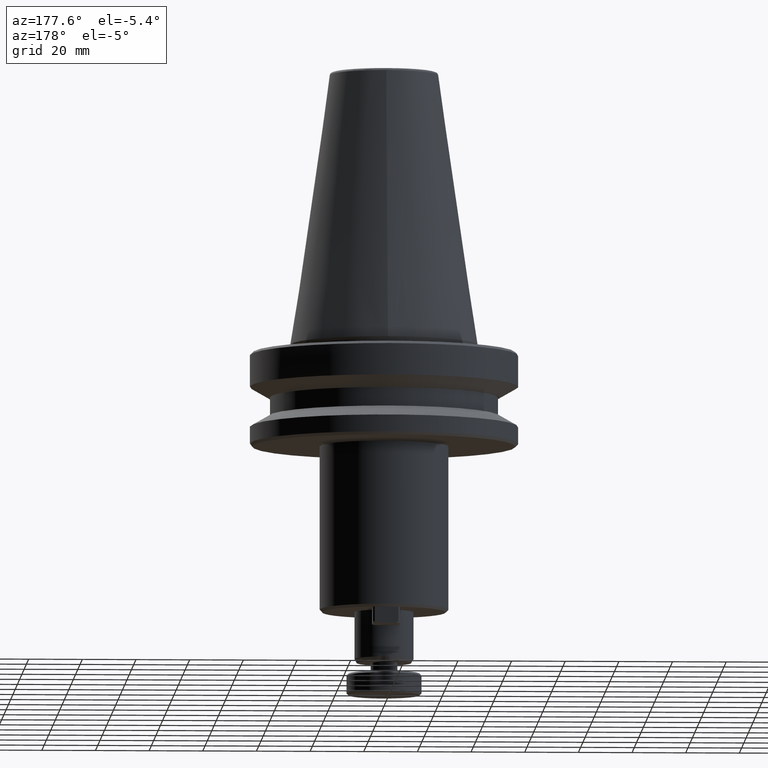
[diagram: clean part render]
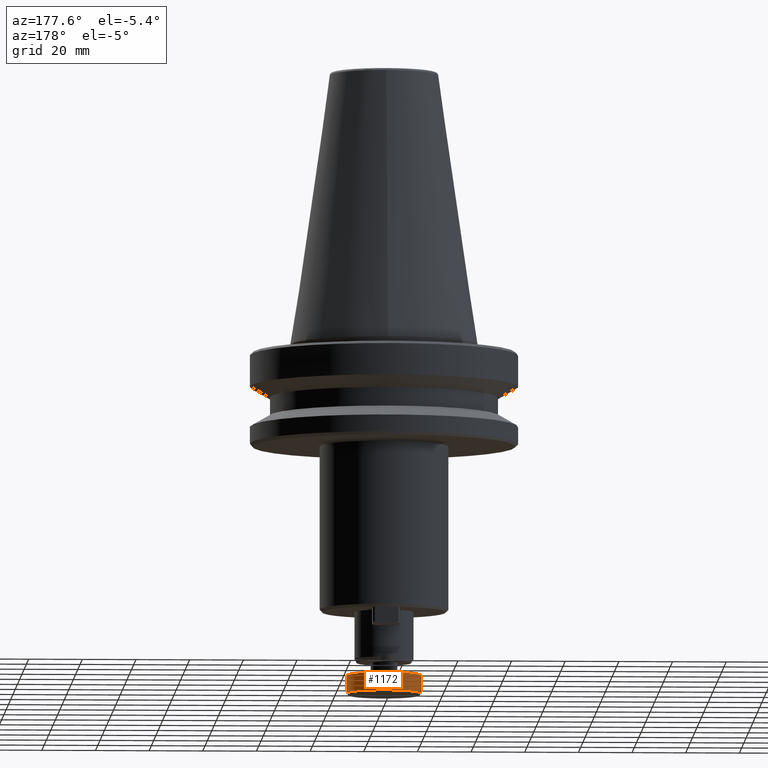
[diagram: same view with one face highlighted and labeled with its STEP entity id]
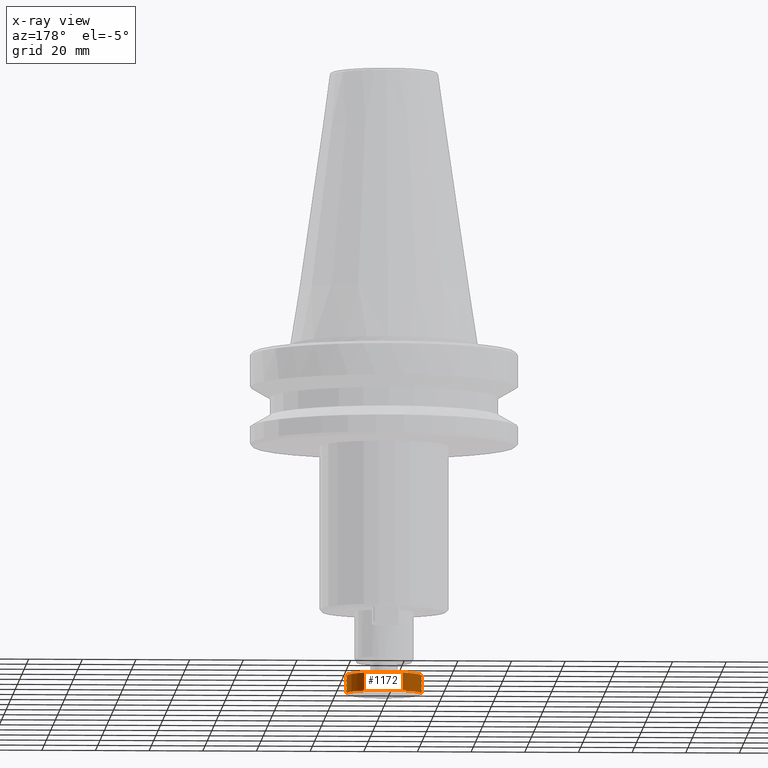
[diagram: x-ray of the same camera — body ghosted, the highlighted face saturated]
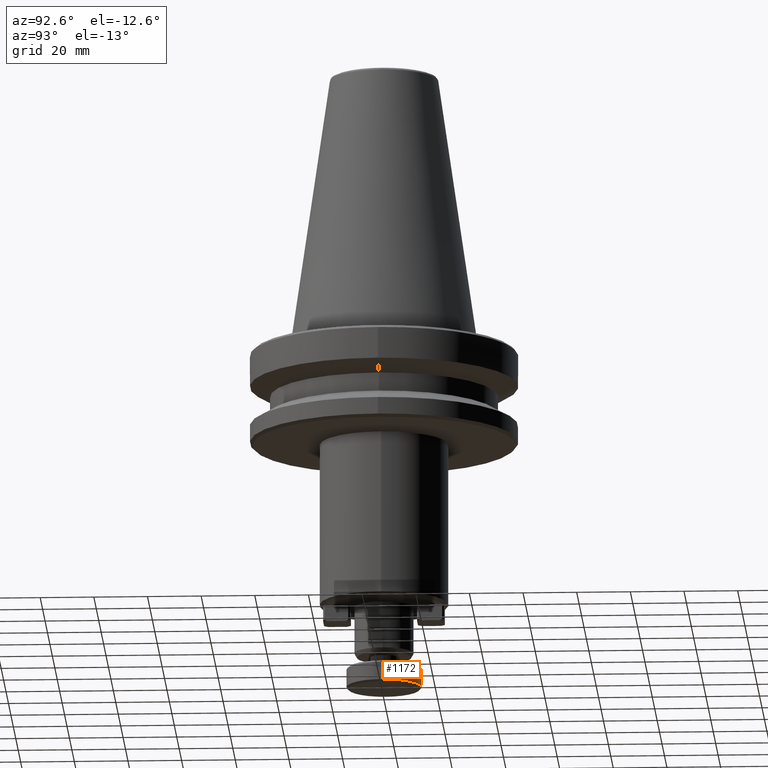
[diagram: same view with one face highlighted and labeled with its STEP entity id]
A machine part, auxiliary view. The second image highlights one B-rep face of the part: STEP entity #1172.
The next image is the same camera in x-ray: the body ghosted, the highlighted face saturated — about 0% of this face is hidden behind the body in this view.
A second angle (auxiliary view) of the same face is appended — the face is thin or edge-on in the first view.
In plain terms, the highlighted cylindrical surface (partial cylindrical patch) has radius 14 mm, axis along (0, 0, 1).
Its self-contained STEP definition (entity closure, byte-faithful):
#67 = ORIENTED_EDGE ( 'NONE', *, *, #294, .F. ) ;
#71 = VECTOR ( 'NONE', #1479, 1000.000000000000000 ) ;
#155 = ORIENTED_EDGE ( 'NONE', *, *, #895, .T. ) ;
#161 = AXIS2_PLACEMENT_3D ( 'NONE', #2244, #2251, #1824 ) ;
#227 = VECTOR ( 'NONE', #1660, 1000.000000000000000 ) ;
#258 = ORIENTED_EDGE ( 'NONE', *, *, #785, .T. ) ;
#294 = EDGE_CURVE ( 'NONE', #1894, #1405, #1637, .T. ) ;
#695 = LINE ( 'NONE', #1481, #71 ) ;
#785 = EDGE_CURVE ( 'NONE', #1029, #1769, #2062, .T. ) ;
#895 = EDGE_CURVE ( 'NONE', #1769, #1405, #1427, .T. ) ;
#953 = EDGE_CURVE ( 'NONE', #1029, #1894, #695, .T. ) ;
#954 = CARTESIAN_POINT ( 'NONE',  ( -14.00000000000000200, 1.714505518806294800E-015, -123.7000000000000300 ) ) ;
#1029 = VERTEX_POINT ( 'NONE', #1399 ) ;
#1172 = ADVANCED_FACE ( 'NONE', ( #2413 ), #1461, .T. ) ;
#1258 = DIRECTION ( 'NONE',  ( 0.0000000000000000000, 0.0000000000000000000, 1.000000000000000000 ) ) ;
#1260 = CARTESIAN_POINT ( 'NONE',  ( 0.0000000000000000000, 0.0000000000000000000, 0.0000000000000000000 ) ) ;
#1264 = DIRECTION ( 'NONE',  ( 1.000000000000000000, 0.0000000000000000000, 0.0000000000000000000 ) ) ;
#1378 = AXIS2_PLACEMENT_3D ( 'NONE', #1260, #1258, #1264 ) ;
#1399 = CARTESIAN_POINT ( 'NONE',  ( 13.99999999999997200, 0.0000000000000000000, -130.3000000000000700 ) ) ;
#1405 = VERTEX_POINT ( 'NONE', #954 ) ;
#1427 = LINE ( 'NONE', #1555, #227 ) ;
#1461 = CYLINDRICAL_SURFACE ( 'NONE', #1378, 13.99999999999999800 ) ;
#1479 = DIRECTION ( 'NONE',  ( 0.0000000000000000000, 0.0000000000000000000, 1.000000000000000000 ) ) ;
#1481 = CARTESIAN_POINT ( 'NONE',  ( 13.99999999999999800, 0.0000000000000000000, 0.0000000000000000000 ) ) ;
#1533 = ORIENTED_EDGE ( 'NONE', *, *, #953, .F. ) ;
#1555 = CARTESIAN_POINT ( 'NONE',  ( -13.99999999999999800, 1.714505518806294400E-015, 0.0000000000000000000 ) ) ;
#1637 = CIRCLE ( 'NONE', #161, 14.00000000000000200 ) ;
#1639 = AXIS2_PLACEMENT_3D ( 'NONE', #2293, #2284, #1834 ) ;
#1660 = DIRECTION ( 'NONE',  ( 0.0000000000000000000, 0.0000000000000000000, 1.000000000000000000 ) ) ;
#1769 = VERTEX_POINT ( 'NONE', #2492 ) ;
#1824 = DIRECTION ( 'NONE',  ( -1.000000000000000000, 0.0000000000000000000, 0.0000000000000000000 ) ) ;
#1834 = DIRECTION ( 'NONE',  ( 1.000000000000000000, 0.0000000000000000000, 0.0000000000000000000 ) ) ;
#1894 = VERTEX_POINT ( 'NONE', #2247 ) ;
#2062 = CIRCLE ( 'NONE', #1639, 13.99999999999999800 ) ;
#2192 = EDGE_LOOP ( 'NONE', ( #258, #155, #67, #1533 ) ) ;
#2244 = CARTESIAN_POINT ( 'NONE',  ( 0.0000000000000000000, 0.0000000000000000000, -123.7000000000000300 ) ) ;
#2247 = CARTESIAN_POINT ( 'NONE',  ( 14.00000000000000200, 0.0000000000000000000, -123.7000000000000300 ) ) ;
#2251 = DIRECTION ( 'NONE',  ( -0.0000000000000000000, -0.0000000000000000000, 1.000000000000000000 ) ) ;
#2284 = DIRECTION ( 'NONE',  ( 0.0000000000000000000, 0.0000000000000000000, 1.000000000000000000 ) ) ;
#2293 = CARTESIAN_POINT ( 'NONE',  ( 0.0000000000000000000, 0.0000000000000000000, -130.3000000000000700 ) ) ;
#2413 = FACE_OUTER_BOUND ( 'NONE', #2192, .T. ) ;
#2492 = CARTESIAN_POINT ( 'NONE',  ( -13.99999999999997200, 1.714505518806290900E-015, -130.3000000000000700 ) ) ;